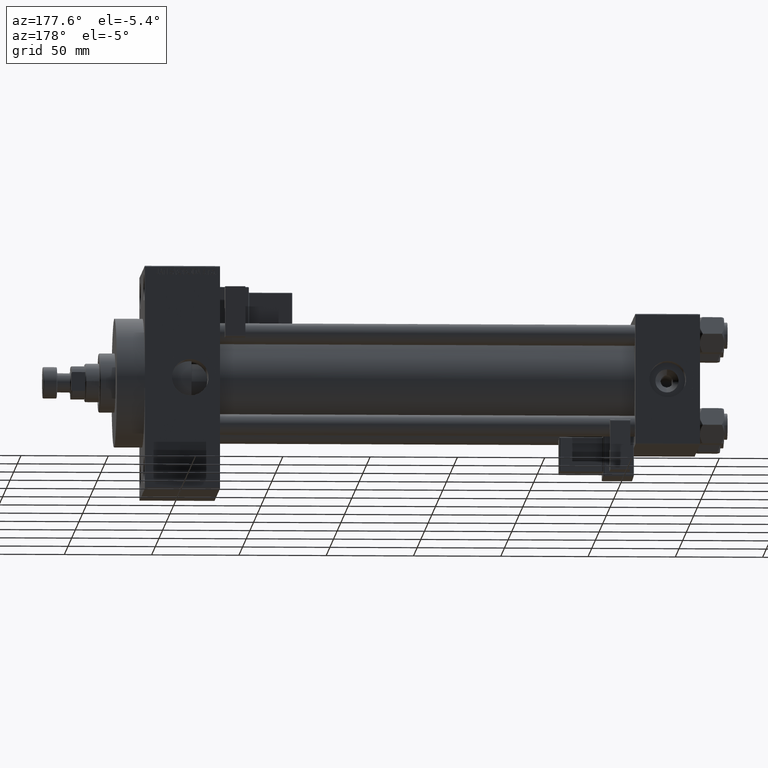
[diagram: clean part render]
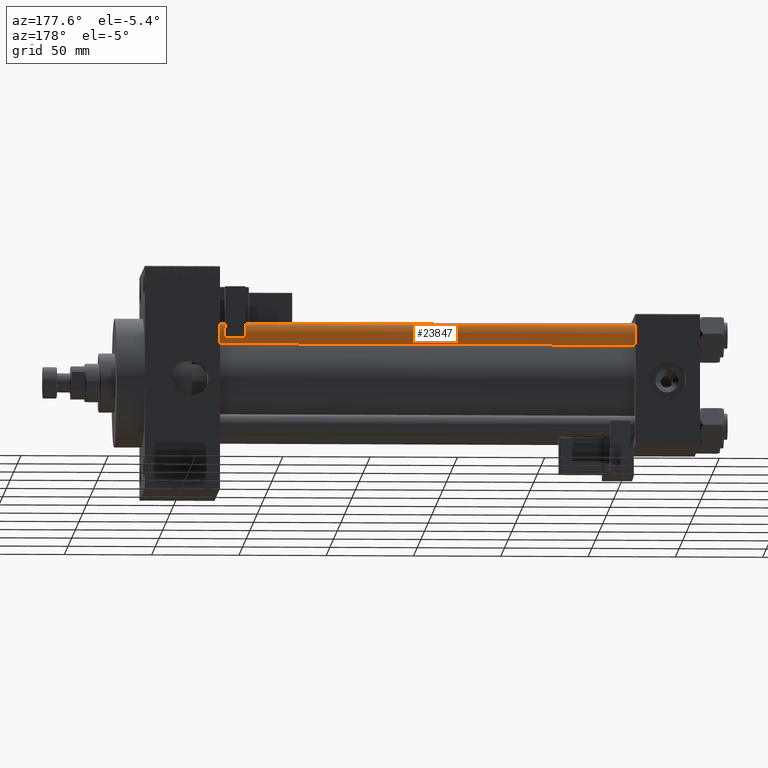
[diagram: same view with one face highlighted and labeled with its STEP entity id]
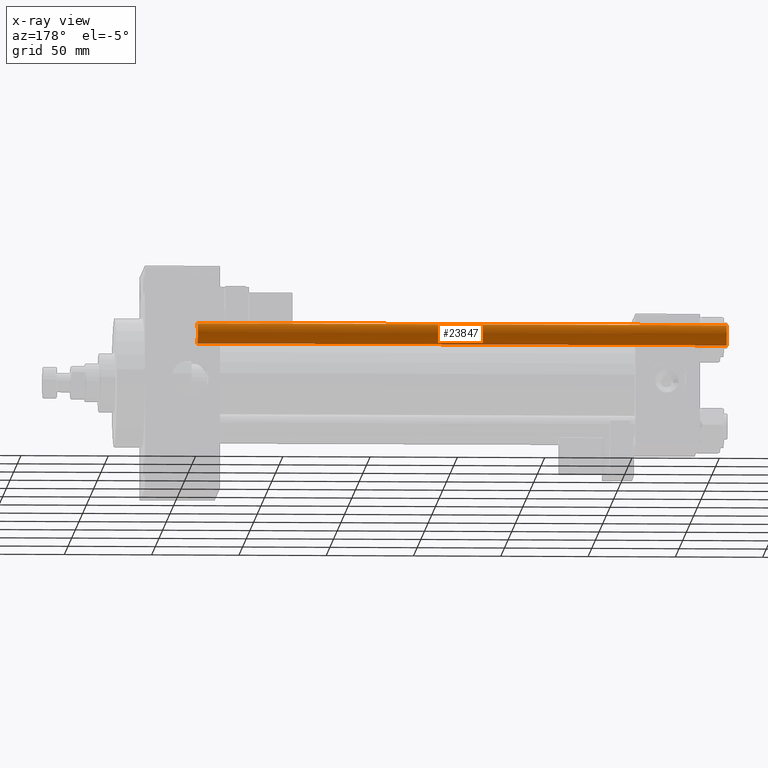
[diagram: x-ray of the same camera — body ghosted, the highlighted face saturated]
A machine part, auxiliary view. The second image highlights one B-rep face of the part: STEP entity #23847.
The next image is the same camera in x-ray: the body ghosted, the highlighted face saturated — about 0% of this face is hidden behind the body in this view.
In plain terms, the highlighted cylindrical surface (edge-blend (fillet) strip) has radius 6 mm, axis along (-1, -0, 0).
Its self-contained STEP definition (entity closure, byte-faithful):
#816 = DIRECTION ( 'NONE',  ( 1.000000000000000000, 0.000000000000000000, 0.000000000000000000 ) ) ;
#2250 = ORIENTED_EDGE ( 'NONE', *, *, #6685, .T. ) ;
#2602 = EDGE_CURVE ( 'NONE', #11016, #31036, #43787, .T. ) ;
#4329 = CIRCLE ( 'NONE', #23715, 6.000000000000000888 ) ;
#5103 = CARTESIAN_POINT ( 'NONE',  ( -6.000000000000000888, 0.000000000000000000, 303.5000000000000000 ) ) ;
#5499 = CARTESIAN_POINT ( 'NONE',  ( -6.000000000000000888, 0.000000000000000000, 304.0000000000000000 ) ) ;
#5937 = CARTESIAN_POINT ( 'NONE',  ( 6.000000000000000888, 7.347880794884120722E-16, 303.5000000000000000 ) ) ;
#6685 = EDGE_CURVE ( 'NONE', #15228, #20137, #4329, .T. ) ;
#7020 = EDGE_CURVE ( 'NONE', #15228, #31036, #24928, .T. ) ;
#8000 = CARTESIAN_POINT ( 'NONE',  ( 6.000000000000000888, 7.347880794884120722E-16, 0.4999999999999449329 ) ) ;
#8416 = CARTESIAN_POINT ( 'NONE',  ( 6.000000000000000888, 7.347880794884120722E-16, 304.0000000000000000 ) ) ;
#8906 = CARTESIAN_POINT ( 'NONE',  ( 0.000000000000000000, 0.000000000000000000, 0.4999999999999449329 ) ) ;
#9466 = ORIENTED_EDGE ( 'NONE', *, *, #2602, .T. ) ;
#11016 = VERTEX_POINT ( 'NONE', #8000 ) ;
#11960 = DIRECTION ( 'NONE',  ( -0.000000000000000000, -0.000000000000000000, -1.000000000000000000 ) ) ;
#12397 = EDGE_CURVE ( 'NONE', #20137, #11016, #34442, .T. ) ;
#12450 = DIRECTION ( 'NONE',  ( -0.000000000000000000, -0.000000000000000000, 1.000000000000000000 ) ) ;
#12625 = VECTOR ( 'NONE', #11960, 1000.000000000000000 ) ;
#13776 = FACE_OUTER_BOUND ( 'NONE', #29588, .T. ) ;
#13856 = CARTESIAN_POINT ( 'NONE',  ( 0.000000000000000000, 0.000000000000000000, 303.5000000000000000 ) ) ;
#15228 = VERTEX_POINT ( 'NONE', #5103 ) ;
#16380 = CARTESIAN_POINT ( 'NONE',  ( -6.000000000000000888, 0.000000000000000000, 0.4999999999999449329 ) ) ;
#16849 = DIRECTION ( 'NONE',  ( -0.000000000000000000, -0.000000000000000000, -1.000000000000000000 ) ) ;
#19688 = VECTOR ( 'NONE', #16849, 1000.000000000000000 ) ;
#20137 = VERTEX_POINT ( 'NONE', #5937 ) ;
#21118 = CYLINDRICAL_SURFACE ( 'NONE', #39768, 6.000000000000000888 ) ;
#21373 = CARTESIAN_POINT ( 'NONE',  ( 0.000000000000000000, 0.000000000000000000, 304.0000000000000000 ) ) ;
#22060 = AXIS2_PLACEMENT_3D ( 'NONE', #8906, #12450, #816 ) ;
#23715 = AXIS2_PLACEMENT_3D ( 'NONE', #13856, #25732, #32815 ) ;
#23847 = ADVANCED_FACE ( 'NONE', ( #13776 ), #21118, .T. ) ;
#24658 = DIRECTION ( 'NONE',  ( -1.000000000000000000, 0.000000000000000000, 0.000000000000000000 ) ) ;
#24928 = LINE ( 'NONE', #5499, #19688 ) ;
#25646 = DIRECTION ( 'NONE',  ( -0.000000000000000000, -0.000000000000000000, -1.000000000000000000 ) ) ;
#25732 = DIRECTION ( 'NONE',  ( 0.000000000000000000, 0.000000000000000000, -1.000000000000000000 ) ) ;
#29588 = EDGE_LOOP ( 'NONE', ( #2250, #32410, #9466, #32771 ) ) ;
#31036 = VERTEX_POINT ( 'NONE', #16380 ) ;
#32410 = ORIENTED_EDGE ( 'NONE', *, *, #12397, .T. ) ;
#32771 = ORIENTED_EDGE ( 'NONE', *, *, #7020, .F. ) ;
#32815 = DIRECTION ( 'NONE',  ( 1.000000000000000000, 0.000000000000000000, 0.000000000000000000 ) ) ;
#34442 = LINE ( 'NONE', #8416, #12625 ) ;
#39768 = AXIS2_PLACEMENT_3D ( 'NONE', #21373, #25646, #24658 ) ;
#43787 = CIRCLE ( 'NONE', #22060, 6.000000000000000888 ) ;